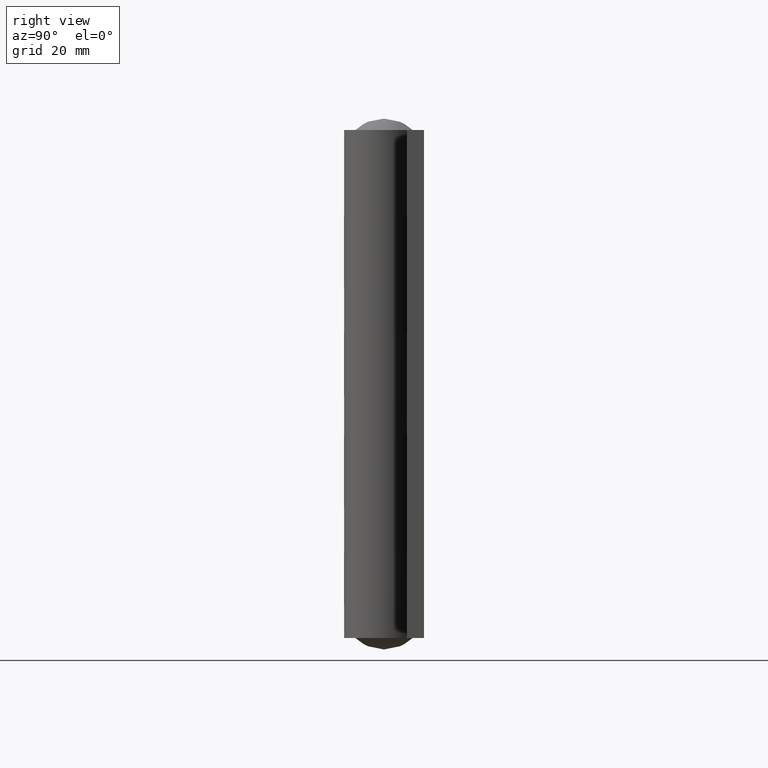
[diagram: clean part render]
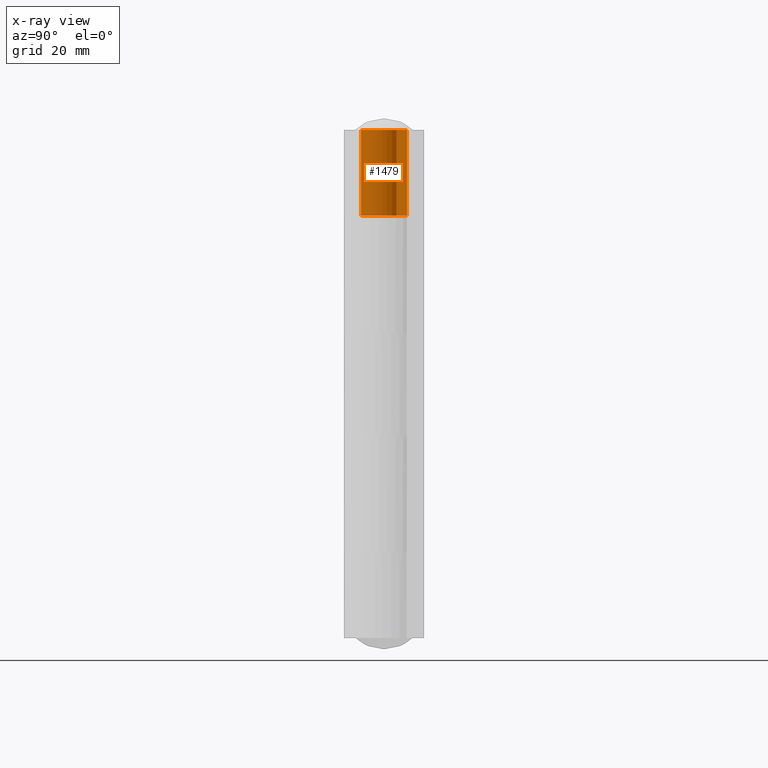
[diagram: x-ray — body ghosted, one internal face saturated and labeled with its STEP entity id]
A machine part, right view, then the same camera in x-ray: the body is ghosted and one INTERNAL B-rep face — a face not visible from any outside direction — is saturated and labeled: STEP entity #1479.
In plain terms, the highlighted face is a freeform B-spline surface patch.
Its self-contained STEP definition (entity closure, byte-faithful):
#1077=CARTESIAN_POINT('',(0.0,4.0,74.000007000000011));
#1078=VERTEX_POINT('',#1077);
#1084=CARTESIAN_POINT('',(3.302318295144940,2.257142857142860,74.000007000000011));
#1085=VERTEX_POINT('',#1084);
#1086=CARTESIAN_POINT('',(3.302318295144937,2.257142857142861,74.000007000000011));
#1087=CARTESIAN_POINT('',(5.068590255621464,-0.327005590007901,74.000007000000011));
#1088=CARTESIAN_POINT('',(2.984904797271446,-2.662769864488088,74.000007000000011));
#1089=CARTESIAN_POINT('',(0.901219338921428,-4.998534138968273,74.000007000000011));
#1090=CARTESIAN_POINT('',(-1.867006771737658,-3.537553634121429,74.000007000000011));
#1091=CARTESIAN_POINT('',(-4.635232882396749,-2.076573129274582,74.000007000000011));
#1092=CARTESIAN_POINT('',(-3.882667545418079,0.961713435362711,74.000007000000011));
#1093=CARTESIAN_POINT('',(-3.130102208439411,4.000000000000001,74.000007000000011));
#1094=CARTESIAN_POINT('',(0.0,4.0,74.000007000000011));
#1102=(BOUNDED_CURVE()B_SPLINE_CURVE(2,(#1086,#1087,#1088,#1089,#1090,#1091,#1092,#1093,#1094),.UNSPECIFIED.,.F.,.U.)B_SPLINE_CURVE_WITH_KNOTS((3,2,2,2,3),(0.0,0.250000000000000,0.500000000000000,0.750000000000000,1.0),.UNSPECIFIED.)CURVE()GEOMETRIC_REPRESENTATION_ITEM()RATIONAL_B_SPLINE_CURVE((1.0,0.787536779725454,1.0,0.787536779725454,1.0,0.787536779725454,1.0,0.787536779725454,1.0))REPRESENTATION_ITEM(''));
#1103=EDGE_CURVE('',#1085,#1078,#1102,.T.);
#1219=CARTESIAN_POINT('',(3.302318295144940,2.257142857142855,89.000007000000011));
#1220=VERTEX_POINT('',#1219);
#1226=CARTESIAN_POINT('',(0.0,4.0,89.000007000000011));
#1227=VERTEX_POINT('',#1226);
#1228=CARTESIAN_POINT('',(3.302318295144939,2.257142857142858,89.000007000000011));
#1229=CARTESIAN_POINT('',(5.068590255621464,-0.327005590007902,89.000007000000011));
#1230=CARTESIAN_POINT('',(2.984904797271446,-2.662769864488088,89.000007000000011));
#1231=CARTESIAN_POINT('',(0.901219338921428,-4.998534138968274,89.000007000000011));
#1232=CARTESIAN_POINT('',(-1.867006771737658,-3.537553634121429,89.000007000000011));
#1233=CARTESIAN_POINT('',(-4.635232882396749,-2.076573129274582,89.000007000000011));
#1234=CARTESIAN_POINT('',(-3.882667545418079,0.961713435362711,89.000007000000011));
#1235=CARTESIAN_POINT('',(-3.130102208439410,4.000000000000000,89.000007000000011));
#1236=CARTESIAN_POINT('',(0.0,4.0,89.000007000000011));
#1244=(BOUNDED_CURVE()B_SPLINE_CURVE(2,(#1228,#1229,#1230,#1231,#1232,#1233,#1234,#1235,#1236),.UNSPECIFIED.,.F.,.U.)B_SPLINE_CURVE_WITH_KNOTS((3,2,2,2,3),(0.0,0.250000000000000,0.500000000000000,0.750000000000000,1.0),.UNSPECIFIED.)CURVE()GEOMETRIC_REPRESENTATION_ITEM()RATIONAL_B_SPLINE_CURVE((1.0,0.787536779725454,1.0,0.787536779725454,1.0,0.787536779725454,1.0,0.787536779725454,1.0))REPRESENTATION_ITEM(''));
#1245=EDGE_CURVE('',#1220,#1227,#1244,.T.);
#1340=CARTESIAN_POINT('',(0.0,4.0,89.000007000000011));
#1341=CARTESIAN_POINT('',(0.0,4.0,74.000007000000011));
#1342=QUASI_UNIFORM_CURVE('',1,(#1340,#1341),.UNSPECIFIED.,.F.,.U.);
#1343=EDGE_CURVE('',#1227,#1078,#1342,.T.);
#1441=CARTESIAN_POINT('',(3.302318295144940,2.257142857142855,89.000007000000011));
#1442=CARTESIAN_POINT('',(3.302318295144940,2.257142857142860,74.000007000000011));
#1443=QUASI_UNIFORM_CURVE('',1,(#1441,#1442),.UNSPECIFIED.,.F.,.U.);
#1444=EDGE_CURVE('',#1220,#1085,#1443,.T.);
#1451=CARTESIAN_POINT('',(0.149874399950620,3.997191221875610,89.375007000000025));
#1452=CARTESIAN_POINT('',(0.149874399950620,3.997191221875610,73.615631999999991));
#1453=CARTESIAN_POINT('',(-4.935734875797196,4.187875779175414,89.375007000000025));
#1454=CARTESIAN_POINT('',(-4.935734875797196,4.187875779175414,73.615631999999991));
#1455=CARTESIAN_POINT('',(-3.919428973579644,-0.798796921040895,89.375007000000025));
#1456=CARTESIAN_POINT('',(-3.919428973579644,-0.798796921040895,73.615631999999991));
#1457=CARTESIAN_POINT('',(-2.903123071362091,-5.785469621257204,89.375007000000025));
#1458=CARTESIAN_POINT('',(-2.903123071362091,-5.785469621257204,73.615631999999991));
#1459=CARTESIAN_POINT('',(1.702235156074733,-3.619723121099627,89.375007000000025));
#1460=CARTESIAN_POINT('',(1.702235156074733,-3.619723121099627,73.615631999999991));
#1461=CARTESIAN_POINT('',(6.307593383511558,-1.453976620942049,89.375007000000025));
#1462=CARTESIAN_POINT('',(6.307593383511558,-1.453976620942049,73.615631999999991));
#1463=CARTESIAN_POINT('',(3.115044962434032,2.509281746240217,89.375007000000025));
#1464=CARTESIAN_POINT('',(3.115044962434032,2.509281746240217,73.615631999999991));
#1472=(BOUNDED_SURFACE()B_SPLINE_SURFACE(1,2,((#1451,#1453,#1455,#1457,#1459,#1461,#1463),(#1452,#1454,#1456,#1458,#1460,#1462,#1464)),.UNSPECIFIED.,.F.,.F.,.U.)B_SPLINE_SURFACE_WITH_KNOTS((2,2),(3,2,2,3),(0.0,15.759375000000031),(0.0,7.774934969949693,15.549869939899390,23.324804909849082),.UNSPECIFIED.)GEOMETRIC_REPRESENTATION_ITEM()RATIONAL_B_SPLINE_SURFACE(((1.0,0.617951097721073,1.0,0.617951097721073,1.0,0.617951097721073,1.0),(1.0,0.617951097721073,1.0,0.617951097721073,1.0,0.617951097721073,1.0)))REPRESENTATION_ITEM('')SURFACE());
#1473=ORIENTED_EDGE('',*,*,#1444,.T.);
#1474=ORIENTED_EDGE('',*,*,#1103,.T.);
#1475=ORIENTED_EDGE('',*,*,#1343,.F.);
#1476=ORIENTED_EDGE('',*,*,#1245,.F.);
#1477=EDGE_LOOP('',(#1473,#1474,#1475,#1476));
#1478=FACE_OUTER_BOUND('',#1477,.T.);
#1479=ADVANCED_FACE('',(#1478),#1472,.F.);